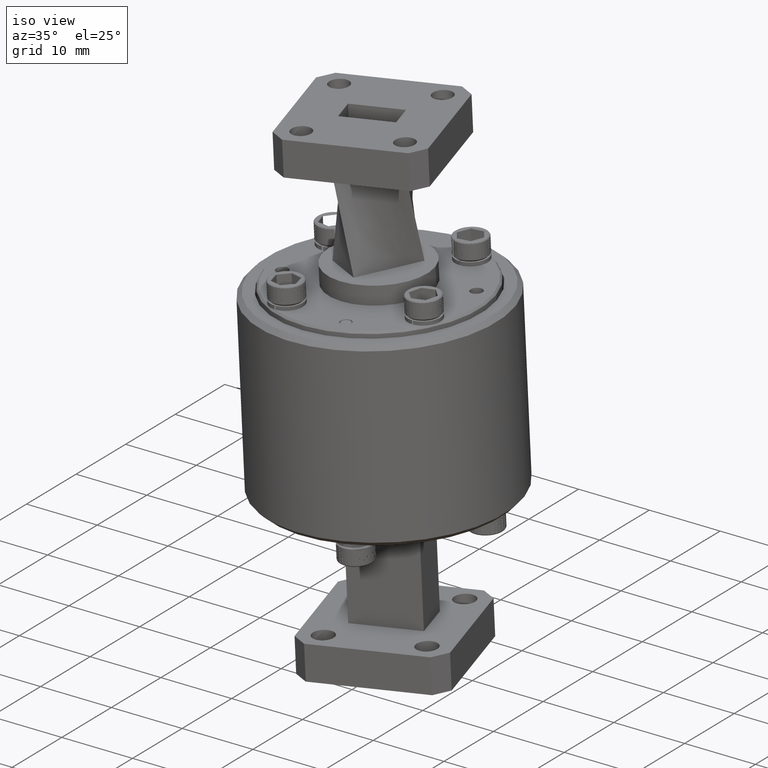
[diagram: clean part render]
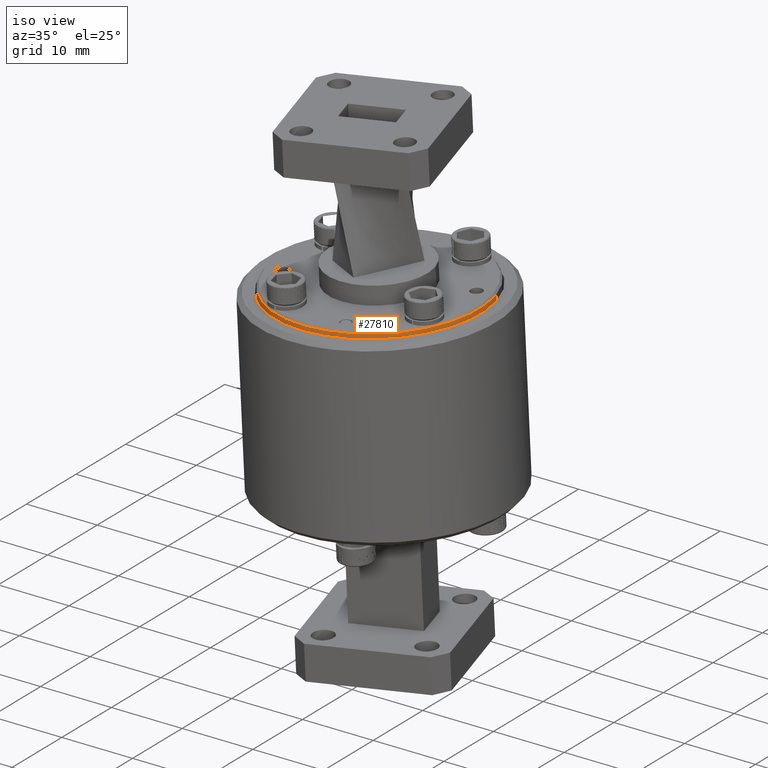
[diagram: same view with one face highlighted and labeled with its STEP entity id]
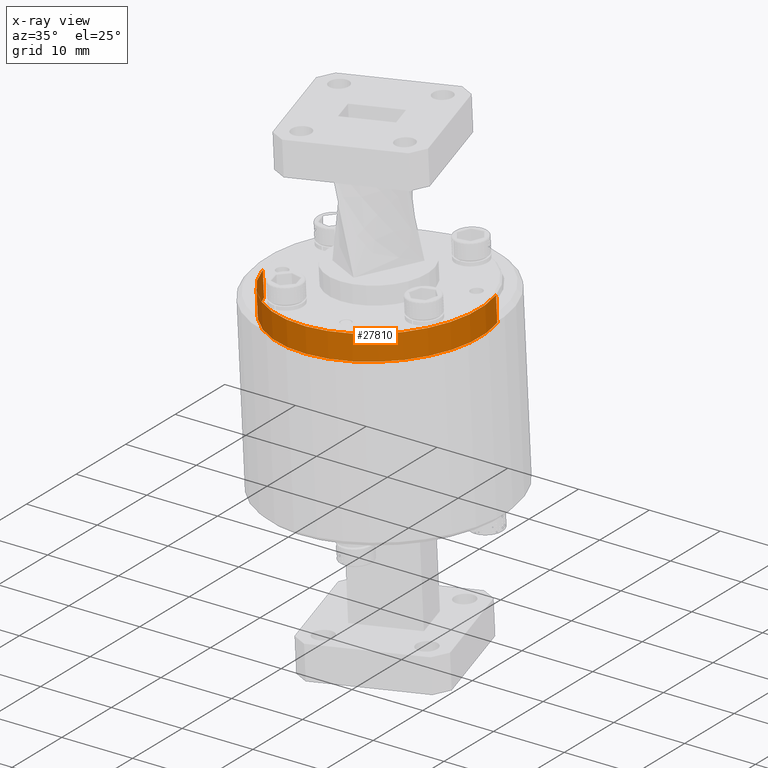
[diagram: x-ray of the same camera — body ghosted, the highlighted face saturated]
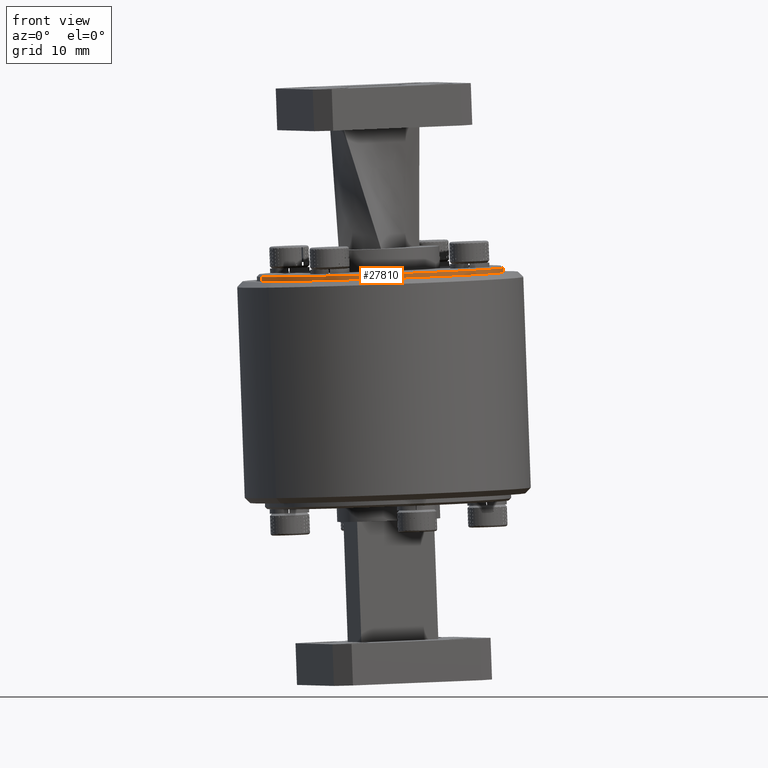
[diagram: same view with one face highlighted and labeled with its STEP entity id]
A machine part, iso view. The second image highlights one B-rep face of the part: STEP entity #27810.
The next image is the same camera in x-ray: the body ghosted, the highlighted face saturated — about 0% of this face is hidden behind the body in this view.
A second angle (front view) of the same face is appended — the face is thin or edge-on in the first view.
In plain terms, the highlighted cylindrical surface (partial cylindrical patch) has radius 14.2875 mm, axis along (-0.0356, -0.0182, 0.9992).
Its self-contained STEP definition (entity closure, byte-faithful):
#1035 = CYLINDRICAL_SURFACE ( 'NONE', #24811, 0.5625000000000005600 ) ;
#2471 = DIRECTION ( 'NONE',  ( -0.03562249074304842800, -0.01820857446431912300, 0.9991994225224706300 ) ) ;
#2741 = CARTESIAN_POINT ( 'NONE',  ( -5.394728004998786900, -1.936392865998566300, -0.6438374729880395100 ) ) ;
#4955 = EDGE_CURVE ( 'NONE', #24269, #13699, #17294, .T. ) ;
#5633 = CIRCLE ( 'NONE', #11115, 0.5625000000000005600 ) ;
#6075 = CARTESIAN_POINT ( 'NONE',  ( -6.475194854915795200, -2.246658981830585300, -0.6880112615614901700 ) ) ;
#6290 = DIRECTION ( 'NONE',  ( 0.03562249074304842800, 0.01820857446431912300, -0.9991994225224706300 ) ) ;
#8821 = DIRECTION ( 'NONE',  ( -0.9604149777040059700, -0.2757921029617957400, -0.03926558984306734200 ) ) ;
#9171 = CARTESIAN_POINT ( 'NONE',  ( -5.940304803568747800, -2.094257210084223600, -0.5160444538963944200 ) ) ;
#9207 = DIRECTION ( 'NONE',  ( -0.03562249074304842800, -0.01820857446431912300, 0.9991994225224706300 ) ) ;
#11115 = AXIS2_PLACEMENT_3D ( 'NONE', #9171, #6290, #18243 ) ;
#11884 = ORIENTED_EDGE ( 'NONE', *, *, #12216, .T. ) ;
#12216 = EDGE_CURVE ( 'NONE', #23124, #22478, #34804, .T. ) ;
#13699 = VERTEX_POINT ( 'NONE', #26314 ) ;
#15464 = ORIENTED_EDGE ( 'NONE', *, *, #4955, .F. ) ;
#15924 = VECTOR ( 'NONE', #27140, 39.37007874015748100 ) ;
#17294 = LINE ( 'NONE', #6075, #15924 ) ;
#17675 = EDGE_CURVE ( 'NONE', #22478, #13699, #5633, .T. ) ;
#18243 = DIRECTION ( 'NONE',  ( -0.9604149777040064100, -0.2757921029617943500, -0.03926558984306727900 ) ) ;
#18918 = CARTESIAN_POINT ( 'NONE',  ( -5.395084229906217400, -1.936574951743209400, -0.6338454787628147200 ) ) ;
#20587 = DIRECTION ( 'NONE',  ( -0.03562249074304842800, -0.01820857446431912300, 0.9991994225224706300 ) ) ;
#20947 = ORIENTED_EDGE ( 'NONE', *, *, #26358, .T. ) ;
#22478 = VERTEX_POINT ( 'NONE', #27670 ) ;
#23124 = VERTEX_POINT ( 'NONE', #18918 ) ;
#23294 = CARTESIAN_POINT ( 'NONE',  ( -6.475551079823225600, -2.246841067575228400, -0.6780192673362655000 ) ) ;
#24269 = VERTEX_POINT ( 'NONE', #23294 ) ;
#24811 = AXIS2_PLACEMENT_3D ( 'NONE', #32653, #20587, #38656 ) ;
#26314 = CARTESIAN_POINT ( 'NONE',  ( -6.480538228527253300, -2.249390268000233100, -0.5381313481831198100 ) ) ;
#26358 = EDGE_CURVE ( 'NONE', #24269, #23124, #36540, .T. ) ;
#26883 = CARTESIAN_POINT ( 'NONE',  ( -5.935317654864722000, -2.091708009659218900, -0.6559323730495401100 ) ) ;
#27140 = DIRECTION ( 'NONE',  ( -0.03562249074304842800, -0.01820857446431912300, 0.9991994225224706300 ) ) ;
#27670 = CARTESIAN_POINT ( 'NONE',  ( -5.400071378610245000, -1.939124152168214100, -0.4939575596096690800 ) ) ;
#27810 = ADVANCED_FACE ( 'NONE', ( #28520 ), #1035, .T. ) ;
#28520 = FACE_OUTER_BOUND ( 'NONE', #38075, .T. ) ;
#31103 = ORIENTED_EDGE ( 'NONE', *, *, #17675, .T. ) ;
#32653 = CARTESIAN_POINT ( 'NONE',  ( -5.934961429957291500, -2.091525923914575800, -0.6659243672747647800 ) ) ;
#33211 = AXIS2_PLACEMENT_3D ( 'NONE', #26883, #9207, #8821 ) ;
#33863 = VECTOR ( 'NONE', #2471, 39.37007874015748100 ) ;
#34804 = LINE ( 'NONE', #2741, #33863 ) ;
#36540 = CIRCLE ( 'NONE', #33211, 0.5624999999999996700 ) ;
#38075 = EDGE_LOOP ( 'NONE', ( #15464, #20947, #11884, #31103 ) ) ;
#38656 = DIRECTION ( 'NONE',  ( 0.9604149777040064100, 0.2757921029617943500, 0.03926558984306727900 ) ) ;